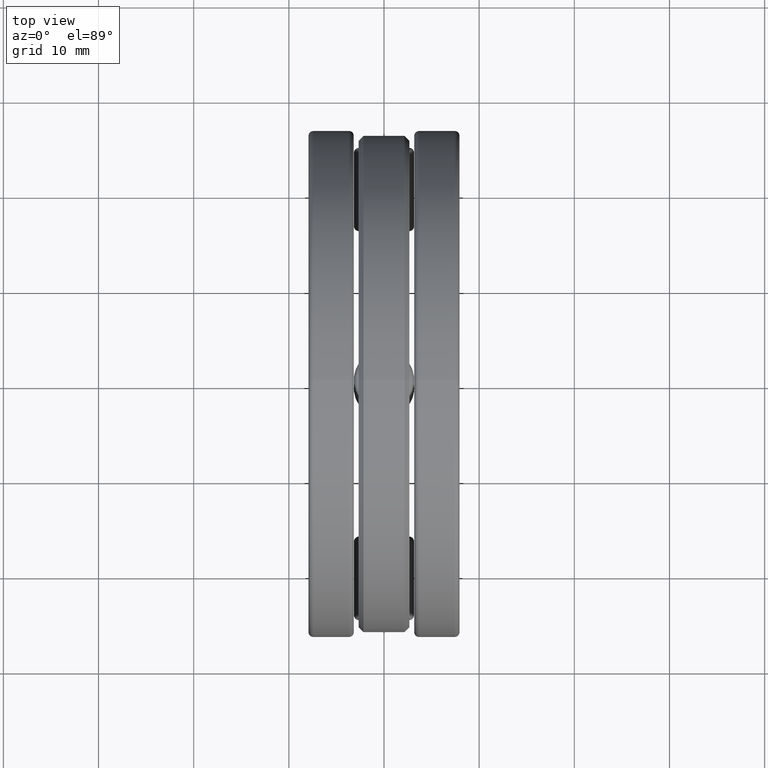
[diagram: clean part render]
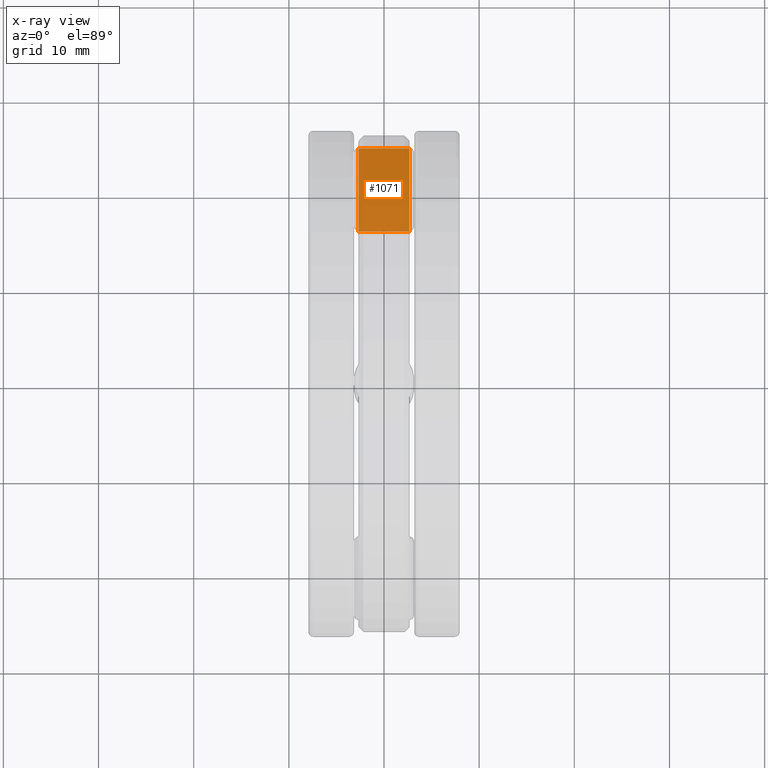
[diagram: x-ray — body ghosted, one internal face saturated and labeled with its STEP entity id]
A machine part, top view, then the same camera in x-ray: the body is ghosted and one INTERNAL B-rep face — a face not visible from any outside direction — is saturated and labeled: STEP entity #1071.
In plain terms, the highlighted planar face has unit normal (0, 0, -1).
Its self-contained STEP definition (entity closure, byte-faithful):
#10 = VERTEX_POINT ( 'NONE', #522 ) ;
#33 = FACE_OUTER_BOUND ( 'NONE', #1082, .T. ) ;
#209 = EDGE_CURVE ( 'NONE', #623, #524, #1282, .T. ) ;
#221 = LINE ( 'NONE', #575, #973 ) ;
#230 = AXIS2_PLACEMENT_3D ( 'NONE', #335, #768, #1363 ) ;
#250 = LINE ( 'NONE', #1025, #886 ) ;
#274 = DIRECTION ( 'NONE',  ( 1.000000000000000000, -0.0000000000000000000, -0.0000000000000000000 ) ) ;
#328 = DIRECTION ( 'NONE',  ( -0.0000000000000000000, 1.000000000000000000, 9.915963679362121700E-017 ) ) ;
#335 = CARTESIAN_POINT ( 'NONE',  ( -0.3125000000000000600, 0.6325000000000001700, -0.1250000000000000300 ) ) ;
#355 = DIRECTION ( 'NONE',  ( 1.000000000000000000, -0.0000000000000000000, -0.0000000000000000000 ) ) ;
#463 = CARTESIAN_POINT ( 'NONE',  ( -0.1050000000000000400, 0.6325000000000001700, -0.1250000000000000300 ) ) ;
#502 = VECTOR ( 'NONE', #274, 39.37007874015748100 ) ;
#522 = CARTESIAN_POINT ( 'NONE',  ( 0.1050000000000000400, 0.9768749999999999400, -0.1249999999999999900 ) ) ;
#524 = VERTEX_POINT ( 'NONE', #1145 ) ;
#537 = EDGE_CURVE ( 'NONE', #623, #697, #221, .T. ) ;
#575 = CARTESIAN_POINT ( 'NONE',  ( -0.1050000000000000200, -5.338834540503521400E-018, -0.1250000000000000800 ) ) ;
#623 = VERTEX_POINT ( 'NONE', #463 ) ;
#662 = ORIENTED_EDGE ( 'NONE', *, *, #209, .T. ) ;
#697 = VERTEX_POINT ( 'NONE', #987 ) ;
#712 = LINE ( 'NONE', #738, #502 ) ;
#738 = CARTESIAN_POINT ( 'NONE',  ( -0.3125000000000000600, 0.9768749999999999400, -0.1249999999999999900 ) ) ;
#768 = DIRECTION ( 'NONE',  ( 0.0000000000000000000, 9.915963679362121700E-017, -1.000000000000000000 ) ) ;
#809 = ORIENTED_EDGE ( 'NONE', *, *, #1287, .F. ) ;
#886 = VECTOR ( 'NONE', #328, 39.37007874015748100 ) ;
#900 = PLANE ( 'NONE',  #230 ) ;
#931 = DIRECTION ( 'NONE',  ( -0.0000000000000000000, 1.000000000000000000, 9.915963679362121700E-017 ) ) ;
#943 = VECTOR ( 'NONE', #355, 39.37007874015748100 ) ;
#973 = VECTOR ( 'NONE', #931, 39.37007874015748100 ) ;
#976 = ORIENTED_EDGE ( 'NONE', *, *, #1060, .T. ) ;
#987 = CARTESIAN_POINT ( 'NONE',  ( -0.1050000000000000400, 0.9768749999999999400, -0.1249999999999999900 ) ) ;
#1025 = CARTESIAN_POINT ( 'NONE',  ( 0.1050000000000000400, 3.012874373890889300E-017, -0.1250000000000000800 ) ) ;
#1060 = EDGE_CURVE ( 'NONE', #524, #10, #250, .T. ) ;
#1071 = ADVANCED_FACE ( 'NONE', ( #33 ), #900, .F. ) ;
#1082 = EDGE_LOOP ( 'NONE', ( #976, #809, #1327, #662 ) ) ;
#1145 = CARTESIAN_POINT ( 'NONE',  ( 0.1050000000000000400, 0.6325000000000001700, -0.1250000000000000300 ) ) ;
#1282 = LINE ( 'NONE', #1371, #943 ) ;
#1287 = EDGE_CURVE ( 'NONE', #697, #10, #712, .T. ) ;
#1327 = ORIENTED_EDGE ( 'NONE', *, *, #537, .F. ) ;
#1363 = DIRECTION ( 'NONE',  ( 0.0000000000000000000, 1.000000000000000000, 9.915963679362121700E-017 ) ) ;
#1371 = CARTESIAN_POINT ( 'NONE',  ( -0.3125000000000000600, 0.6325000000000001700, -0.1250000000000000300 ) ) ;